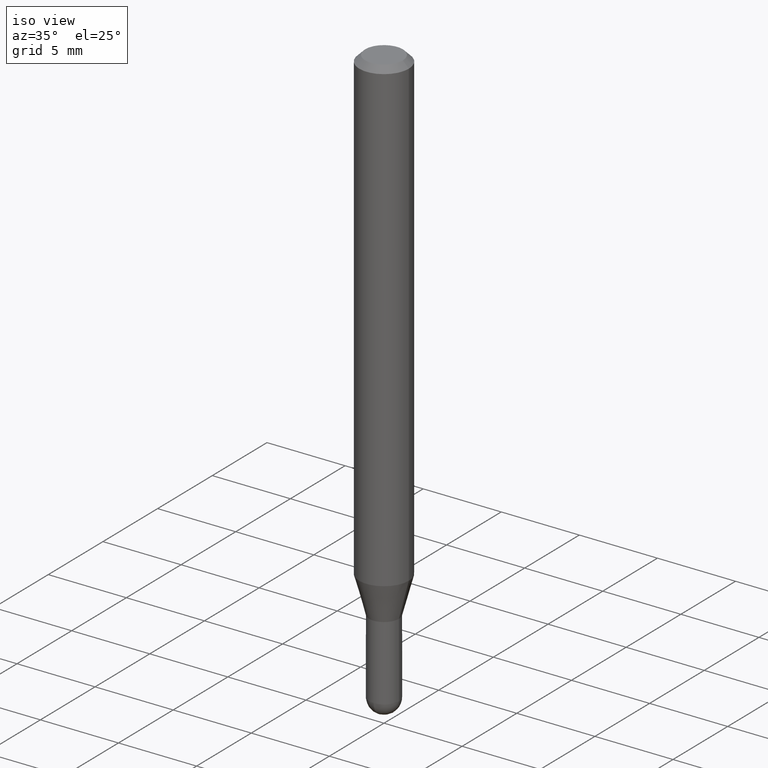
[diagram: clean part render]
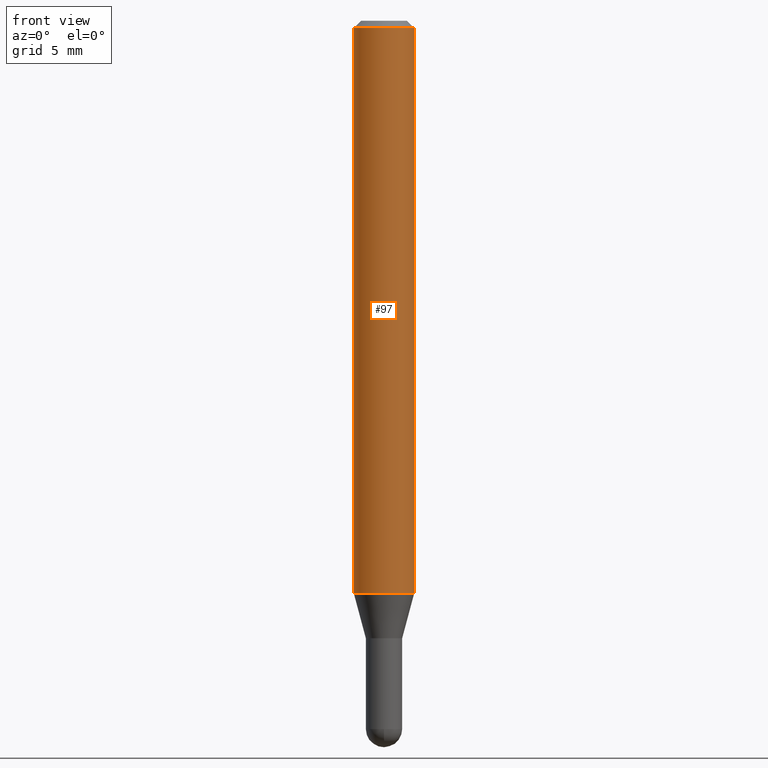
[diagram: tour spotlight — one face highlighted and labeled with its STEP entity id]
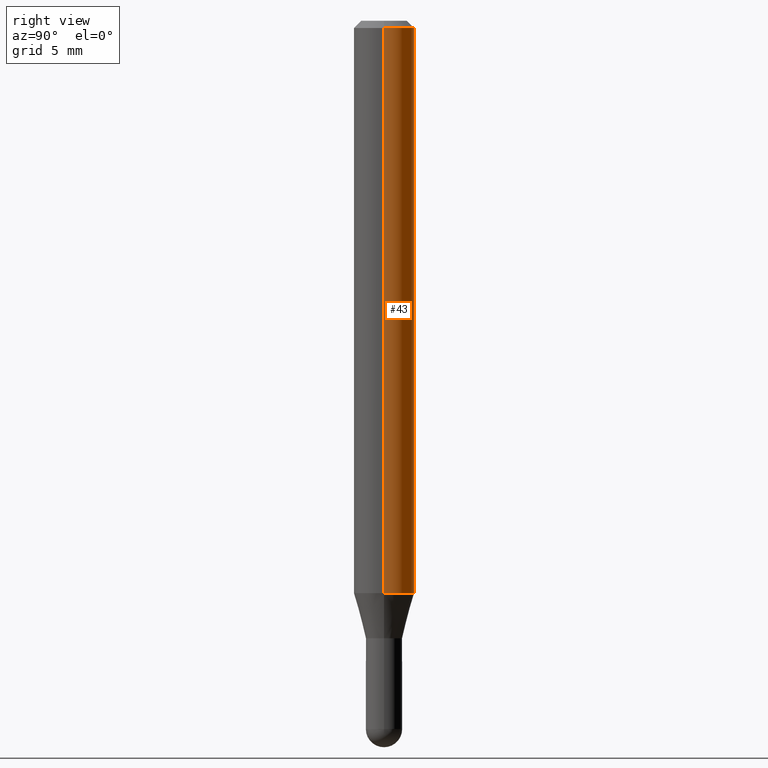
[diagram: tour spotlight — one face highlighted and labeled with its STEP entity id]
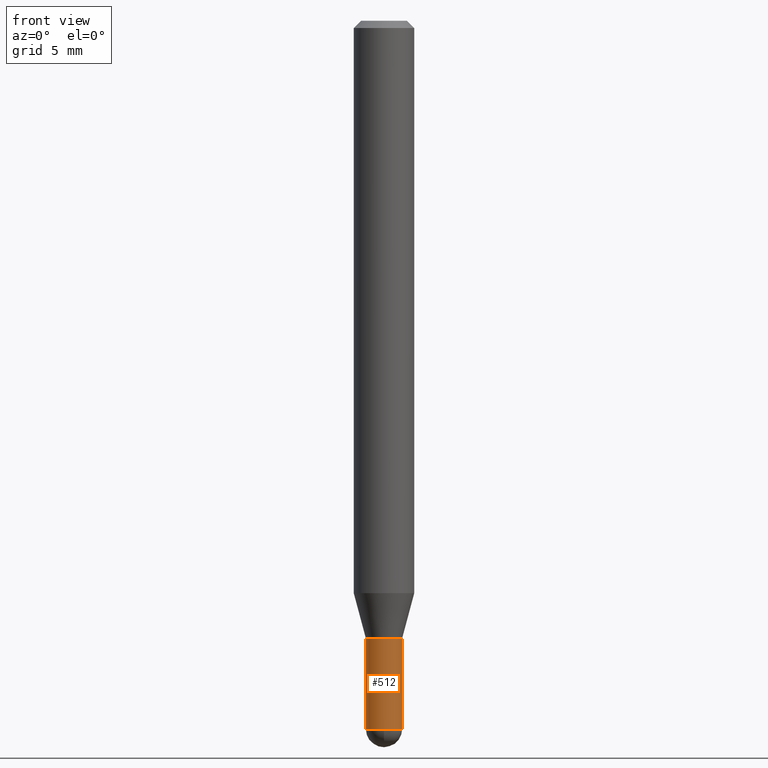
[diagram: tour spotlight — one face highlighted and labeled with its STEP entity id]
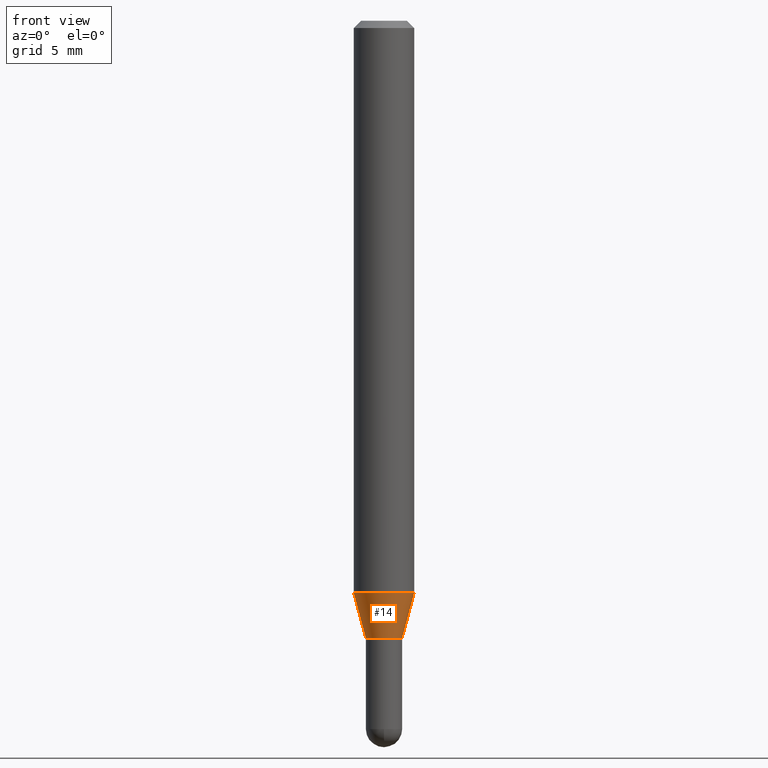
[diagram: tour spotlight — one face highlighted and labeled with its STEP entity id]
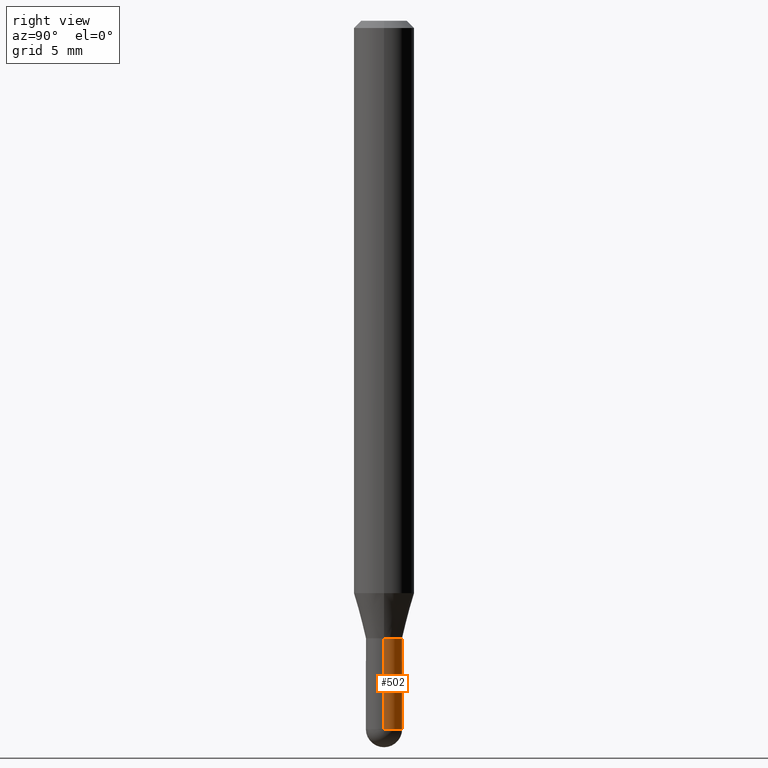
[diagram: tour spotlight — one face highlighted and labeled with its STEP entity id]
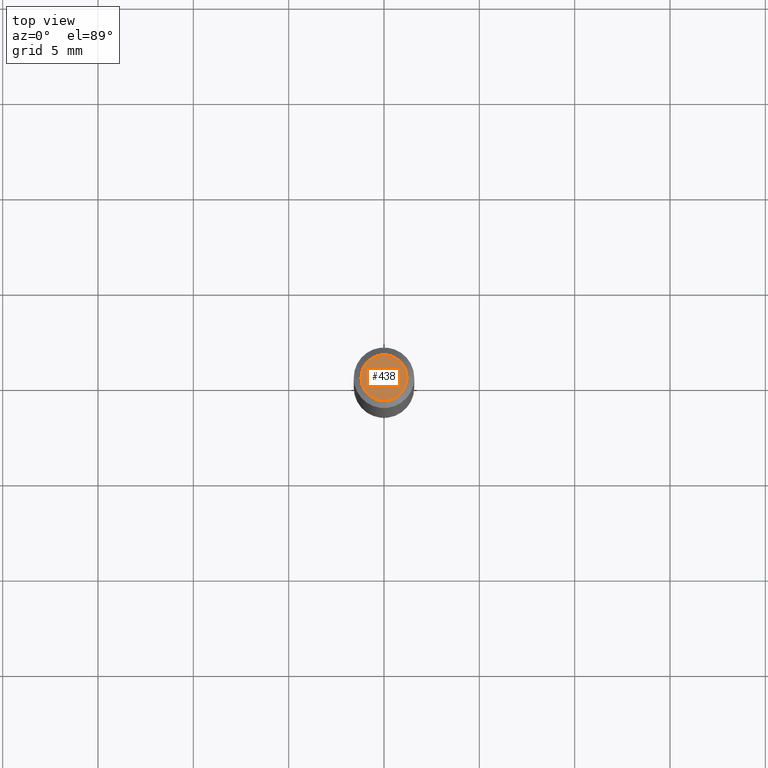
[diagram: tour spotlight — one face highlighted and labeled with its STEP entity id]
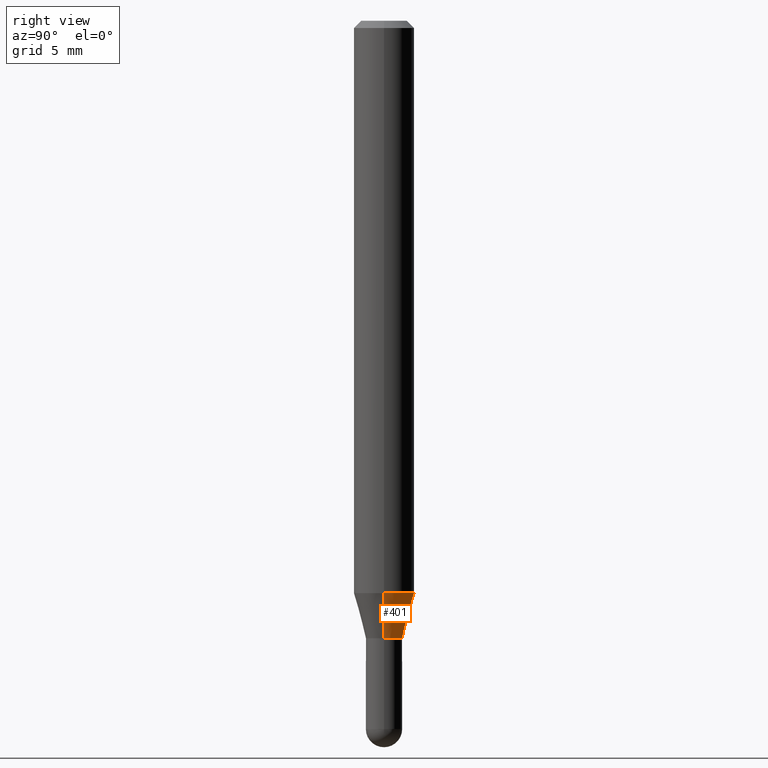
[diagram: tour spotlight — one face highlighted and labeled with its STEP entity id]
A machine part: a face-by-face anatomy tour. The part has 17 B-rep faces; the first image is the clean iso view, then the 7 largest visible faces are spotlighted one at a time (largest first), each with its STEP entity span.

Face 1 — front view, entity #97. In plain terms, the highlighted cylindrical surface (edge-blend (fillet) strip) has radius 1.5875 mm, axis along (-0, 0, 1).
Definition (entity closure, byte-faithful):
#13 = DIRECTION ( 'NONE',  ( -2.445468806185136877E-29, 3.491481338843145188E-15, 1.000000000000000000 ) ) ;
#19 = FACE_OUTER_BOUND ( 'NONE', #290, .T. ) ;
#36 = ORIENTED_EDGE ( 'NONE', *, *, #385, .T. ) ;
#46 = CIRCLE ( 'NONE', #284, 0.06250000000000000000 ) ;
#54 = AXIS2_PLACEMENT_3D ( 'NONE', #62, #144, #141 ) ;
#62 = CARTESIAN_POINT ( 'NONE',  ( 2.889807382060866226E-29, -4.125879063268994698E-15, -1.181698729810782167 ) ) ;
#63 = CARTESIAN_POINT ( 'NONE',  ( 0.06250000000000000000, -4.364351673553916694E-16, 3.047610484872459871E-30 ) ) ;
#67 = CARTESIAN_POINT ( 'NONE',  ( 3.668203209277721290E-31, -5.237222008264741202E-17, -0.01500000000000006710 ) ) ;
#76 = ORIENTED_EDGE ( 'NONE', *, *, #136, .T. ) ;
#97 = ADVANCED_FACE ( 'NONE', ( #19 ), #448, .T. ) ;
#108 = CARTESIAN_POINT ( 'NONE',  ( -0.06250000000000000000, -3.681789853418932082E-15, -1.181698729810782167 ) ) ;
#127 = AXIS2_PLACEMENT_3D ( 'NONE', #188, #349, #499 ) ;
#136 = EDGE_CURVE ( 'NONE', #344, #493, #412, .T. ) ;
#141 = DIRECTION ( 'NONE',  ( 1.000000000000000000, -6.982962677686270655E-15, 0.000000000000000000 ) ) ;
#144 = DIRECTION ( 'NONE',  ( -2.445468806185136597E-29, 3.491481338843145583E-15, 1.000000000000000000 ) ) ;
#188 = CARTESIAN_POINT ( 'NONE',  ( 0.000000000000000000, 0.000000000000000000, 0.000000000000000000 ) ) ;
#192 = CARTESIAN_POINT ( 'NONE',  ( -0.06250000000000000000, -1.645036431825758273E-15, -0.01500000000000006710 ) ) ;
#214 = VECTOR ( 'NONE', #377, 39.37007874015748143 ) ;
#217 = CARTESIAN_POINT ( 'NONE',  ( 0.06250000000000000000, -4.562314230624385579E-15, -1.181698729810782167 ) ) ;
#220 = CARTESIAN_POINT ( 'NONE',  ( -0.06250000000000000000, 4.440892098500626162E-16, -3.074334431409316114E-30 ) ) ;
#222 = ORIENTED_EDGE ( 'NONE', *, *, #408, .F. ) ;
#231 = DIRECTION ( 'NONE',  ( -2.445468806185136597E-29, 3.491481338843145583E-15, 1.000000000000000000 ) ) ;
#284 = AXIS2_PLACEMENT_3D ( 'NONE', #67, #231, #463 ) ;
#290 = EDGE_LOOP ( 'NONE', ( #222, #36, #76, #302 ) ) ;
#293 = CIRCLE ( 'NONE', #54, 0.06250000000000000000 ) ;
#302 = ORIENTED_EDGE ( 'NONE', *, *, #417, .F. ) ;
#337 = VECTOR ( 'NONE', #13, 39.37007874015748143 ) ;
#344 = VERTEX_POINT ( 'NONE', #217 ) ;
#349 = DIRECTION ( 'NONE',  ( -2.445468806185136597E-29, 3.491481338843145583E-15, 1.000000000000000000 ) ) ;
#377 = DIRECTION ( 'NONE',  ( -2.445468806185136877E-29, 3.491481338843145188E-15, 1.000000000000000000 ) ) ;
#385 = EDGE_CURVE ( 'NONE', #407, #344, #293, .T. ) ;
#397 = CARTESIAN_POINT ( 'NONE',  ( 0.06250000000000000000, -4.888073874380391431E-16, -0.01500000000000006710 ) ) ;
#407 = VERTEX_POINT ( 'NONE', #108 ) ;
#408 = EDGE_CURVE ( 'NONE', #407, #414, #411, .T. ) ;
#411 = LINE ( 'NONE', #220, #214 ) ;
#412 = LINE ( 'NONE', #63, #337 ) ;
#414 = VERTEX_POINT ( 'NONE', #192 ) ;
#417 = EDGE_CURVE ( 'NONE', #414, #493, #46, .T. ) ;
#448 = CYLINDRICAL_SURFACE ( 'NONE', #127, 0.06250000000000000000 ) ;
#463 = DIRECTION ( 'NONE',  ( 1.000000000000000000, -6.982962677686266711E-15, 0.000000000000000000 ) ) ;
#493 = VERTEX_POINT ( 'NONE', #397 ) ;
#499 = DIRECTION ( 'NONE',  ( 1.000000000000000000, -6.982962677686266711E-15, 4.876176775795935793E-29 ) ) ;

Face 2 — right view, entity #43. In plain terms, the highlighted cylindrical surface (edge-blend (fillet) strip) has radius 1.5875 mm, axis along (-0, 0, 1).
Definition (entity closure, byte-faithful):
#5 = CIRCLE ( 'NONE', #115, 0.06250000000000000000 ) ;
#10 = ORIENTED_EDGE ( 'NONE', *, *, #408, .T. ) ;
#13 = DIRECTION ( 'NONE',  ( -2.445468806185136877E-29, 3.491481338843145188E-15, 1.000000000000000000 ) ) ;
#34 = FACE_OUTER_BOUND ( 'NONE', #82, .T. ) ;
#43 = ADVANCED_FACE ( 'NONE', ( #34 ), #428, .T. ) ;
#63 = CARTESIAN_POINT ( 'NONE',  ( 0.06250000000000000000, -4.364351673553916694E-16, 3.047610484872459871E-30 ) ) ;
#82 = EDGE_LOOP ( 'NONE', ( #471, #10, #371, #342 ) ) ;
#108 = CARTESIAN_POINT ( 'NONE',  ( -0.06250000000000000000, -3.681789853418932082E-15, -1.181698729810782167 ) ) ;
#115 = AXIS2_PLACEMENT_3D ( 'NONE', #145, #193, #341 ) ;
#136 = EDGE_CURVE ( 'NONE', #344, #493, #412, .T. ) ;
#143 = CIRCLE ( 'NONE', #405, 0.06250000000000000000 ) ;
#145 = CARTESIAN_POINT ( 'NONE',  ( 2.889807382060866226E-29, -4.125879063268994698E-15, -1.181698729810782167 ) ) ;
#192 = CARTESIAN_POINT ( 'NONE',  ( -0.06250000000000000000, -1.645036431825758273E-15, -0.01500000000000006710 ) ) ;
#193 = DIRECTION ( 'NONE',  ( -2.445468806185136597E-29, 3.491481338843145583E-15, 1.000000000000000000 ) ) ;
#202 = DIRECTION ( 'NONE',  ( 1.000000000000000000, -6.982962677686266711E-15, 4.876176775795935793E-29 ) ) ;
#214 = VECTOR ( 'NONE', #377, 39.37007874015748143 ) ;
#217 = CARTESIAN_POINT ( 'NONE',  ( 0.06250000000000000000, -4.562314230624385579E-15, -1.181698729810782167 ) ) ;
#220 = CARTESIAN_POINT ( 'NONE',  ( -0.06250000000000000000, 4.440892098500626162E-16, -3.074334431409316114E-30 ) ) ;
#237 = DIRECTION ( 'NONE',  ( -2.445468806185136597E-29, 3.491481338843145583E-15, 1.000000000000000000 ) ) ;
#244 = EDGE_CURVE ( 'NONE', #344, #407, #5, .T. ) ;
#266 = CARTESIAN_POINT ( 'NONE',  ( 3.668203209277721290E-31, -5.237222008264741202E-17, -0.01500000000000006710 ) ) ;
#273 = DIRECTION ( 'NONE',  ( 1.000000000000000000, -6.982962677686266711E-15, 0.000000000000000000 ) ) ;
#323 = AXIS2_PLACEMENT_3D ( 'NONE', #422, #237, #202 ) ;
#337 = VECTOR ( 'NONE', #13, 39.37007874015748143 ) ;
#341 = DIRECTION ( 'NONE',  ( 1.000000000000000000, -6.982962677686270655E-15, 0.000000000000000000 ) ) ;
#342 = ORIENTED_EDGE ( 'NONE', *, *, #136, .F. ) ;
#344 = VERTEX_POINT ( 'NONE', #217 ) ;
#371 = ORIENTED_EDGE ( 'NONE', *, *, #433, .F. ) ;
#377 = DIRECTION ( 'NONE',  ( -2.445468806185136877E-29, 3.491481338843145188E-15, 1.000000000000000000 ) ) ;
#389 = DIRECTION ( 'NONE',  ( -2.445468806185136597E-29, 3.491481338843145583E-15, 1.000000000000000000 ) ) ;
#397 = CARTESIAN_POINT ( 'NONE',  ( 0.06250000000000000000, -4.888073874380391431E-16, -0.01500000000000006710 ) ) ;
#405 = AXIS2_PLACEMENT_3D ( 'NONE', #266, #389, #273 ) ;
#407 = VERTEX_POINT ( 'NONE', #108 ) ;
#408 = EDGE_CURVE ( 'NONE', #407, #414, #411, .T. ) ;
#411 = LINE ( 'NONE', #220, #214 ) ;
#412 = LINE ( 'NONE', #63, #337 ) ;
#414 = VERTEX_POINT ( 'NONE', #192 ) ;
#422 = CARTESIAN_POINT ( 'NONE',  ( 0.000000000000000000, 0.000000000000000000, 0.000000000000000000 ) ) ;
#428 = CYLINDRICAL_SURFACE ( 'NONE', #323, 0.06250000000000000000 ) ;
#433 = EDGE_CURVE ( 'NONE', #493, #414, #143, .T. ) ;
#471 = ORIENTED_EDGE ( 'NONE', *, *, #244, .T. ) ;
#493 = VERTEX_POINT ( 'NONE', #397 ) ;

Face 3 — front view, entity #512. In plain terms, the highlighted cylindrical surface (edge-blend (fillet) strip) has radius 0.9525 mm, axis along (-0, 0, 1).
Definition (entity closure, byte-faithful):
#20 = ORIENTED_EDGE ( 'NONE', *, *, #109, .F. ) ;
#25 = ORIENTED_EDGE ( 'NONE', *, *, #261, .T. ) ;
#44 = DIRECTION ( 'NONE',  ( 1.000000000000000000, -6.982962677686268288E-15, 4.876176775795935793E-29 ) ) ;
#71 = ORIENTED_EDGE ( 'NONE', *, *, #464, .F. ) ;
#74 = CARTESIAN_POINT ( 'NONE',  ( 3.117972727886049049E-29, -4.451638707025011594E-15, -1.275000000000000133 ) ) ;
#79 = DIRECTION ( 'NONE',  ( 1.000000000000000000, -6.982962677686268288E-15, 0.000000000000000000 ) ) ;
#80 = CARTESIAN_POINT ( 'NONE',  ( -0.03749999999999999861, -4.512511556631519117E-15, -1.275000000000000133 ) ) ;
#84 = FACE_OUTER_BOUND ( 'NONE', #113, .T. ) ;
#101 = AXIS2_PLACEMENT_3D ( 'NONE', #392, #130, #44 ) ;
#109 = EDGE_CURVE ( 'NONE', #441, #116, #348, .T. ) ;
#113 = EDGE_LOOP ( 'NONE', ( #71, #362, #25, #274, #20 ) ) ;
#116 = VERTEX_POINT ( 'NONE', #390 ) ;
#117 = CARTESIAN_POINT ( 'NONE',  ( 3.576498129045762161E-29, -5.106291458058100676E-15, -1.462500000000000133 ) ) ;
#119 = DIRECTION ( 'NONE',  ( 1.000000000000000000, -6.982962677686280121E-15, 0.000000000000000000 ) ) ;
#122 = LINE ( 'NONE', #468, #436 ) ;
#124 = LINE ( 'NONE', #320, #180 ) ;
#126 = DIRECTION ( 'NONE',  ( -2.445468806185136877E-29, 3.491481338843145188E-15, 1.000000000000000000 ) ) ;
#129 = CIRCLE ( 'NONE', #272, 0.03749999999999993616 ) ;
#130 = DIRECTION ( 'NONE',  ( -2.445468806185136597E-29, 3.491481338843145583E-15, 1.000000000000000000 ) ) ;
#147 = VERTEX_POINT ( 'NONE', #288 ) ;
#160 = CARTESIAN_POINT ( 'NONE',  ( 3.576498129045762161E-29, -5.106291458058100676E-15, -1.462500000000000133 ) ) ;
#171 = CYLINDRICAL_SURFACE ( 'NONE', #101, 0.03749999999999996392 ) ;
#180 = VECTOR ( 'NONE', #126, 39.37007874015748143 ) ;
#261 = EDGE_CURVE ( 'NONE', #147, #415, #129, .T. ) ;
#268 = DIRECTION ( 'NONE',  ( -2.445468806185136597E-29, 3.491481338843145583E-15, 1.000000000000000000 ) ) ;
#269 = VERTEX_POINT ( 'NONE', #354 ) ;
#272 = AXIS2_PLACEMENT_3D ( 'NONE', #117, #268, #418 ) ;
#274 = ORIENTED_EDGE ( 'NONE', *, *, #310, .T. ) ;
#281 = AXIS2_PLACEMENT_3D ( 'NONE', #160, #460, #119 ) ;
#288 = CARTESIAN_POINT ( 'NONE',  ( -2.664535259100019132E-16, -0.03750000000000512645, -1.462500000000000133 ) ) ;
#289 = EDGE_CURVE ( 'NONE', #269, #147, #478, .T. ) ;
#309 = CARTESIAN_POINT ( 'NONE',  ( 0.03749999999999993616, -5.040826182954790742E-15, -1.462500000000000133 ) ) ;
#310 = EDGE_CURVE ( 'NONE', #415, #116, #122, .T. ) ;
#320 = CARTESIAN_POINT ( 'NONE',  ( -0.03749999999999996392, 2.664535259100373133E-16, -1.844600658845588057E-30 ) ) ;
#348 = CIRCLE ( 'NONE', #403, 0.03749999999999999861 ) ;
#354 = CARTESIAN_POINT ( 'NONE',  ( -0.03749999999999993616, -4.512511556631519117E-15, -1.462500000000000133 ) ) ;
#362 = ORIENTED_EDGE ( 'NONE', *, *, #289, .T. ) ;
#390 = CARTESIAN_POINT ( 'NONE',  ( 0.03749999999999999861, -4.713499807438246596E-15, -1.275000000000000133 ) ) ;
#392 = CARTESIAN_POINT ( 'NONE',  ( 0.000000000000000000, 0.000000000000000000, 0.000000000000000000 ) ) ;
#393 = DIRECTION ( 'NONE',  ( -2.445468806185136597E-29, 3.491481338843145583E-15, 1.000000000000000000 ) ) ;
#403 = AXIS2_PLACEMENT_3D ( 'NONE', #74, #393, #79 ) ;
#415 = VERTEX_POINT ( 'NONE', #309 ) ;
#418 = DIRECTION ( 'NONE',  ( 1.000000000000000000, -6.982962677686280121E-15, 0.000000000000000000 ) ) ;
#436 = VECTOR ( 'NONE', #504, 39.37007874015748143 ) ;
#441 = VERTEX_POINT ( 'NONE', #80 ) ;
#460 = DIRECTION ( 'NONE',  ( -2.445468806185136597E-29, 3.491481338843145583E-15, 1.000000000000000000 ) ) ;
#464 = EDGE_CURVE ( 'NONE', #269, #441, #124, .T. ) ;
#468 = CARTESIAN_POINT ( 'NONE',  ( 0.03749999999999996392, -2.618611004132348044E-16, 1.828566290923474171E-30 ) ) ;
#478 = CIRCLE ( 'NONE', #281, 0.03749999999999993616 ) ;
#504 = DIRECTION ( 'NONE',  ( -2.445468806185136877E-29, 3.491481338843145188E-15, 1.000000000000000000 ) ) ;
#512 = ADVANCED_FACE ( 'NONE', ( #84 ), #171, .T. ) ;

Face 4 — front view, entity #14. In plain terms, the highlighted conical surface has half-angle 15 deg.
Definition (entity closure, byte-faithful):
#1 = DIRECTION ( 'NONE',  ( -0.2588190451025291217, 5.211531920934597585E-15, 0.9659258262890659807 ) ) ;
#6 = CARTESIAN_POINT ( 'NONE',  ( 0.03750000000000019984, -4.713499807438247385E-15, -1.275000000000000133 ) ) ;
#14 = ADVANCED_FACE ( 'NONE', ( #233 ), #179, .T. ) ;
#18 = CARTESIAN_POINT ( 'NONE',  ( 0.03750000000000019984, -4.713499807438247385E-15, -1.275000000000000133 ) ) ;
#33 = VECTOR ( 'NONE', #322, 39.37007874015748143 ) ;
#54 = AXIS2_PLACEMENT_3D ( 'NONE', #62, #144, #141 ) ;
#56 = DIRECTION ( 'NONE',  ( 1.000000000000000000, -6.982962677686257244E-15, 0.000000000000000000 ) ) ;
#62 = CARTESIAN_POINT ( 'NONE',  ( 2.889807382060866226E-29, -4.125879063268994698E-15, -1.181698729810782167 ) ) ;
#75 = AXIS2_PLACEMENT_3D ( 'NONE', #419, #159, #203 ) ;
#77 = EDGE_CURVE ( 'NONE', #93, #407, #175, .T. ) ;
#85 = VECTOR ( 'NONE', #1, 39.37007874015748143 ) ;
#93 = VERTEX_POINT ( 'NONE', #256 ) ;
#108 = CARTESIAN_POINT ( 'NONE',  ( -0.06250000000000000000, -3.681789853418932082E-15, -1.181698729810782167 ) ) ;
#112 = DIRECTION ( 'NONE',  ( -2.445468806185136597E-29, 3.491481338843145583E-15, 1.000000000000000000 ) ) ;
#139 = EDGE_LOOP ( 'NONE', ( #410, #267, #434, #477 ) ) ;
#141 = DIRECTION ( 'NONE',  ( 1.000000000000000000, -6.982962677686270655E-15, 0.000000000000000000 ) ) ;
#144 = DIRECTION ( 'NONE',  ( -2.445468806185136597E-29, 3.491481338843145583E-15, 1.000000000000000000 ) ) ;
#159 = DIRECTION ( 'NONE',  ( -2.445468806185136597E-29, 3.491481338843145583E-15, 1.000000000000000000 ) ) ;
#173 = CIRCLE ( 'NONE', #208, 0.03750000000000019984 ) ;
#175 = LINE ( 'NONE', #363, #85 ) ;
#179 = CONICAL_SURFACE ( 'NONE', #75, 0.03750000000000019984, 0.2617993877991580676 ) ;
#186 = VERTEX_POINT ( 'NONE', #18 ) ;
#203 = DIRECTION ( 'NONE',  ( 1.000000000000000000, -6.982962677686257244E-15, 0.000000000000000000 ) ) ;
#207 = EDGE_CURVE ( 'NONE', #93, #186, #173, .T. ) ;
#208 = AXIS2_PLACEMENT_3D ( 'NONE', #327, #112, #56 ) ;
#217 = CARTESIAN_POINT ( 'NONE',  ( 0.06250000000000000000, -4.562314230624385579E-15, -1.181698729810782167 ) ) ;
#233 = FACE_OUTER_BOUND ( 'NONE', #139, .T. ) ;
#256 = CARTESIAN_POINT ( 'NONE',  ( -0.03750000000000019984, -3.933487517266952343E-15, -1.275000000000000133 ) ) ;
#267 = ORIENTED_EDGE ( 'NONE', *, *, #207, .T. ) ;
#293 = CIRCLE ( 'NONE', #54, 0.06250000000000000000 ) ;
#322 = DIRECTION ( 'NONE',  ( 0.2588190451025291217, 1.565188264969560831E-15, 0.9659258262890659807 ) ) ;
#327 = CARTESIAN_POINT ( 'NONE',  ( 3.117972727886049049E-29, -4.451638707025011594E-15, -1.275000000000000133 ) ) ;
#328 = EDGE_CURVE ( 'NONE', #186, #344, #331, .T. ) ;
#331 = LINE ( 'NONE', #6, #33 ) ;
#344 = VERTEX_POINT ( 'NONE', #217 ) ;
#363 = CARTESIAN_POINT ( 'NONE',  ( -0.03750000000000019984, -4.185185181114972604E-15, -1.275000000000000133 ) ) ;
#385 = EDGE_CURVE ( 'NONE', #407, #344, #293, .T. ) ;
#407 = VERTEX_POINT ( 'NONE', #108 ) ;
#410 = ORIENTED_EDGE ( 'NONE', *, *, #77, .F. ) ;
#419 = CARTESIAN_POINT ( 'NONE',  ( 3.117972727886049049E-29, -4.451638707025011594E-15, -1.275000000000000133 ) ) ;
#434 = ORIENTED_EDGE ( 'NONE', *, *, #328, .T. ) ;
#477 = ORIENTED_EDGE ( 'NONE', *, *, #385, .F. ) ;

Face 5 — right view, entity #502. In plain terms, the highlighted cylindrical surface (edge-blend (fillet) strip) has radius 0.9525 mm, axis along (-0, 0, 1).
Definition (entity closure, byte-faithful):
#4 = CARTESIAN_POINT ( 'NONE',  ( 3.576498129045762161E-29, -5.106291458058100676E-15, -1.462500000000000133 ) ) ;
#28 = ORIENTED_EDGE ( 'NONE', *, *, #131, .T. ) ;
#39 = ORIENTED_EDGE ( 'NONE', *, *, #464, .T. ) ;
#40 = AXIS2_PLACEMENT_3D ( 'NONE', #365, #285, #49 ) ;
#49 = DIRECTION ( 'NONE',  ( 1.000000000000000000, -6.982962677686268288E-15, 0.000000000000000000 ) ) ;
#80 = CARTESIAN_POINT ( 'NONE',  ( -0.03749999999999999861, -4.512511556631519117E-15, -1.275000000000000133 ) ) ;
#116 = VERTEX_POINT ( 'NONE', #390 ) ;
#122 = LINE ( 'NONE', #468, #436 ) ;
#124 = LINE ( 'NONE', #320, #180 ) ;
#126 = DIRECTION ( 'NONE',  ( -2.445468806185136877E-29, 3.491481338843145188E-15, 1.000000000000000000 ) ) ;
#131 = EDGE_CURVE ( 'NONE', #415, #459, #442, .T. ) ;
#168 = DIRECTION ( 'NONE',  ( 1.000000000000000000, -6.982962677686268288E-15, 4.876176775795935793E-29 ) ) ;
#172 = AXIS2_PLACEMENT_3D ( 'NONE', #4, #247, #373 ) ;
#180 = VECTOR ( 'NONE', #126, 39.37007874015748143 ) ;
#182 = CARTESIAN_POINT ( 'NONE',  ( 3.576498129045762161E-29, -5.106291458058100676E-15, -1.462500000000000133 ) ) ;
#183 = ORIENTED_EDGE ( 'NONE', *, *, #310, .F. ) ;
#204 = EDGE_CURVE ( 'NONE', #459, #269, #398, .T. ) ;
#205 = AXIS2_PLACEMENT_3D ( 'NONE', #182, #297, #451 ) ;
#210 = ORIENTED_EDGE ( 'NONE', *, *, #366, .F. ) ;
#240 = EDGE_LOOP ( 'NONE', ( #338, #39, #210, #183, #28 ) ) ;
#243 = CIRCLE ( 'NONE', #40, 0.03749999999999999861 ) ;
#247 = DIRECTION ( 'NONE',  ( -2.445468806185136597E-29, 3.491481338843145583E-15, 1.000000000000000000 ) ) ;
#269 = VERTEX_POINT ( 'NONE', #354 ) ;
#277 = FACE_OUTER_BOUND ( 'NONE', #240, .T. ) ;
#279 = CARTESIAN_POINT ( 'NONE',  ( 2.618611004132704018E-16, 0.03749999999999485689, -1.462500000000000133 ) ) ;
#285 = DIRECTION ( 'NONE',  ( -2.445468806185136597E-29, 3.491481338843145583E-15, 1.000000000000000000 ) ) ;
#297 = DIRECTION ( 'NONE',  ( -2.445468806185136597E-29, 3.491481338843145583E-15, 1.000000000000000000 ) ) ;
#309 = CARTESIAN_POINT ( 'NONE',  ( 0.03749999999999993616, -5.040826182954790742E-15, -1.462500000000000133 ) ) ;
#310 = EDGE_CURVE ( 'NONE', #415, #116, #122, .T. ) ;
#320 = CARTESIAN_POINT ( 'NONE',  ( -0.03749999999999996392, 2.664535259100373133E-16, -1.844600658845588057E-30 ) ) ;
#338 = ORIENTED_EDGE ( 'NONE', *, *, #204, .T. ) ;
#354 = CARTESIAN_POINT ( 'NONE',  ( -0.03749999999999993616, -4.512511556631519117E-15, -1.462500000000000133 ) ) ;
#365 = CARTESIAN_POINT ( 'NONE',  ( 3.117972727886049049E-29, -4.451638707025011594E-15, -1.275000000000000133 ) ) ;
#366 = EDGE_CURVE ( 'NONE', #116, #441, #243, .T. ) ;
#373 = DIRECTION ( 'NONE',  ( 1.000000000000000000, -6.982962677686280121E-15, 0.000000000000000000 ) ) ;
#390 = CARTESIAN_POINT ( 'NONE',  ( 0.03749999999999999861, -4.713499807438246596E-15, -1.275000000000000133 ) ) ;
#398 = CIRCLE ( 'NONE', #205, 0.03749999999999993616 ) ;
#406 = AXIS2_PLACEMENT_3D ( 'NONE', #429, #425, #168 ) ;
#415 = VERTEX_POINT ( 'NONE', #309 ) ;
#425 = DIRECTION ( 'NONE',  ( -2.445468806185136597E-29, 3.491481338843145583E-15, 1.000000000000000000 ) ) ;
#429 = CARTESIAN_POINT ( 'NONE',  ( 0.000000000000000000, 0.000000000000000000, 0.000000000000000000 ) ) ;
#436 = VECTOR ( 'NONE', #504, 39.37007874015748143 ) ;
#441 = VERTEX_POINT ( 'NONE', #80 ) ;
#442 = CIRCLE ( 'NONE', #172, 0.03749999999999993616 ) ;
#451 = DIRECTION ( 'NONE',  ( 1.000000000000000000, -6.982962677686280121E-15, 0.000000000000000000 ) ) ;
#459 = VERTEX_POINT ( 'NONE', #279 ) ;
#464 = EDGE_CURVE ( 'NONE', #269, #441, #124, .T. ) ;
#468 = CARTESIAN_POINT ( 'NONE',  ( 0.03749999999999996392, -2.618611004132348044E-16, 1.828566290923474171E-30 ) ) ;
#473 = CYLINDRICAL_SURFACE ( 'NONE', #406, 0.03749999999999996392 ) ;
#502 = ADVANCED_FACE ( 'NONE', ( #277 ), #473, .T. ) ;
#504 = DIRECTION ( 'NONE',  ( -2.445468806185136877E-29, 3.491481338843145188E-15, 1.000000000000000000 ) ) ;

Face 6 — top view, entity #438. In plain terms, the highlighted planar face has unit normal (0, -0, -1).
Definition (entity closure, byte-faithful):
#47 = VERTEX_POINT ( 'NONE', #394 ) ;
#105 = CARTESIAN_POINT ( 'NONE',  ( 1.601787791729603882E-45, -2.286928448837997150E-31, -6.550023405239620703E-17 ) ) ;
#120 = PLANE ( 'NONE',  #324 ) ;
#133 = AXIS2_PLACEMENT_3D ( 'NONE', #105, #255, #336 ) ;
#170 = DIRECTION ( 'NONE',  ( -2.445468806185136597E-29, 3.491481338843145583E-15, 1.000000000000000000 ) ) ;
#199 = CIRCLE ( 'NONE', #456, 0.04749999999999999362 ) ;
#212 = ORIENTED_EDGE ( 'NONE', *, *, #232, .T. ) ;
#232 = EDGE_CURVE ( 'NONE', #305, #47, #315, .T. ) ;
#236 = CARTESIAN_POINT ( 'NONE',  ( 0.04749999999999999362, -4.035134999187580595E-16, -6.550023405239363091E-17 ) ) ;
#238 = CARTESIAN_POINT ( 'NONE',  ( 1.601787791729603882E-45, -2.286928448837997150E-31, -6.550023405239620703E-17 ) ) ;
#242 = ORIENTED_EDGE ( 'NONE', *, *, #476, .T. ) ;
#255 = DIRECTION ( 'NONE',  ( -2.445468806185136597E-29, 3.491481338843145583E-15, 1.000000000000000000 ) ) ;
#259 = EDGE_LOOP ( 'NONE', ( #242, #212 ) ) ;
#305 = VERTEX_POINT ( 'NONE', #236 ) ;
#315 = CIRCLE ( 'NONE', #133, 0.04749999999999999362 ) ;
#324 = AXIS2_PLACEMENT_3D ( 'NONE', #346, #497, #423 ) ;
#336 = DIRECTION ( 'NONE',  ( 1.000000000000000000, -6.982962677686267499E-15, 4.868699817970219885E-29 ) ) ;
#346 = CARTESIAN_POINT ( 'NONE',  ( 3.316907271900976096E-16, 0.04749999999999999362, -1.985954806212475000E-16 ) ) ;
#358 = DIRECTION ( 'NONE',  ( 1.000000000000000000, -6.982962677686267499E-15, 4.868699817970219885E-29 ) ) ;
#394 = CARTESIAN_POINT ( 'NONE',  ( -0.04749999999999999362, 3.578768372314208041E-16, -6.550023405239862292E-17 ) ) ;
#416 = FACE_OUTER_BOUND ( 'NONE', #259, .T. ) ;
#423 = DIRECTION ( 'NONE',  ( -1.000000000000000000, 6.982962677686265922E-15, -4.876176775795935793E-29 ) ) ;
#438 = ADVANCED_FACE ( 'NONE', ( #416 ), #120, .F. ) ;
#456 = AXIS2_PLACEMENT_3D ( 'NONE', #238, #170, #358 ) ;
#476 = EDGE_CURVE ( 'NONE', #47, #305, #199, .T. ) ;
#497 = DIRECTION ( 'NONE',  ( 2.438088387897960049E-29, -3.491481338843145188E-15, -1.000000000000000000 ) ) ;

Face 7 — right view, entity #401. In plain terms, the highlighted conical surface has half-angle 15 deg.
Definition (entity closure, byte-faithful):
#1 = DIRECTION ( 'NONE',  ( -0.2588190451025291217, 5.211531920934597585E-15, 0.9659258262890659807 ) ) ;
#5 = CIRCLE ( 'NONE', #115, 0.06250000000000000000 ) ;
#6 = CARTESIAN_POINT ( 'NONE',  ( 0.03750000000000019984, -4.713499807438247385E-15, -1.275000000000000133 ) ) ;
#18 = CARTESIAN_POINT ( 'NONE',  ( 0.03750000000000019984, -4.713499807438247385E-15, -1.275000000000000133 ) ) ;
#22 = AXIS2_PLACEMENT_3D ( 'NONE', #94, #444, #246 ) ;
#33 = VECTOR ( 'NONE', #322, 39.37007874015748143 ) ;
#58 = DIRECTION ( 'NONE',  ( -2.445468806185136597E-29, 3.491481338843145583E-15, 1.000000000000000000 ) ) ;
#61 = EDGE_LOOP ( 'NONE', ( #142, #452, #263, #420 ) ) ;
#77 = EDGE_CURVE ( 'NONE', #93, #407, #175, .T. ) ;
#78 = CONICAL_SURFACE ( 'NONE', #22, 0.03750000000000019984, 0.2617993877991580676 ) ;
#85 = VECTOR ( 'NONE', #1, 39.37007874015748143 ) ;
#93 = VERTEX_POINT ( 'NONE', #256 ) ;
#94 = CARTESIAN_POINT ( 'NONE',  ( 3.117972727886049049E-29, -4.451638707025011594E-15, -1.275000000000000133 ) ) ;
#108 = CARTESIAN_POINT ( 'NONE',  ( -0.06250000000000000000, -3.681789853418932082E-15, -1.181698729810782167 ) ) ;
#115 = AXIS2_PLACEMENT_3D ( 'NONE', #145, #193, #341 ) ;
#142 = ORIENTED_EDGE ( 'NONE', *, *, #226, .T. ) ;
#145 = CARTESIAN_POINT ( 'NONE',  ( 2.889807382060866226E-29, -4.125879063268994698E-15, -1.181698729810782167 ) ) ;
#175 = LINE ( 'NONE', #363, #85 ) ;
#186 = VERTEX_POINT ( 'NONE', #18 ) ;
#193 = DIRECTION ( 'NONE',  ( -2.445468806185136597E-29, 3.491481338843145583E-15, 1.000000000000000000 ) ) ;
#217 = CARTESIAN_POINT ( 'NONE',  ( 0.06250000000000000000, -4.562314230624385579E-15, -1.181698729810782167 ) ) ;
#226 = EDGE_CURVE ( 'NONE', #186, #93, #241, .T. ) ;
#241 = CIRCLE ( 'NONE', #396, 0.03750000000000019984 ) ;
#244 = EDGE_CURVE ( 'NONE', #344, #407, #5, .T. ) ;
#246 = DIRECTION ( 'NONE',  ( 1.000000000000000000, -6.982962677686257244E-15, 0.000000000000000000 ) ) ;
#256 = CARTESIAN_POINT ( 'NONE',  ( -0.03750000000000019984, -3.933487517266952343E-15, -1.275000000000000133 ) ) ;
#263 = ORIENTED_EDGE ( 'NONE', *, *, #244, .F. ) ;
#291 = FACE_OUTER_BOUND ( 'NONE', #61, .T. ) ;
#322 = DIRECTION ( 'NONE',  ( 0.2588190451025291217, 1.565188264969560831E-15, 0.9659258262890659807 ) ) ;
#328 = EDGE_CURVE ( 'NONE', #186, #344, #331, .T. ) ;
#331 = LINE ( 'NONE', #6, #33 ) ;
#332 = CARTESIAN_POINT ( 'NONE',  ( 3.117972727886049049E-29, -4.451638707025011594E-15, -1.275000000000000133 ) ) ;
#341 = DIRECTION ( 'NONE',  ( 1.000000000000000000, -6.982962677686270655E-15, 0.000000000000000000 ) ) ;
#344 = VERTEX_POINT ( 'NONE', #217 ) ;
#363 = CARTESIAN_POINT ( 'NONE',  ( -0.03750000000000019984, -4.185185181114972604E-15, -1.275000000000000133 ) ) ;
#396 = AXIS2_PLACEMENT_3D ( 'NONE', #332, #58, #445 ) ;
#401 = ADVANCED_FACE ( 'NONE', ( #291 ), #78, .T. ) ;
#407 = VERTEX_POINT ( 'NONE', #108 ) ;
#420 = ORIENTED_EDGE ( 'NONE', *, *, #328, .F. ) ;
#444 = DIRECTION ( 'NONE',  ( -2.445468806185136597E-29, 3.491481338843145583E-15, 1.000000000000000000 ) ) ;
#445 = DIRECTION ( 'NONE',  ( 1.000000000000000000, -6.982962677686257244E-15, 0.000000000000000000 ) ) ;
#452 = ORIENTED_EDGE ( 'NONE', *, *, #77, .T. ) ;